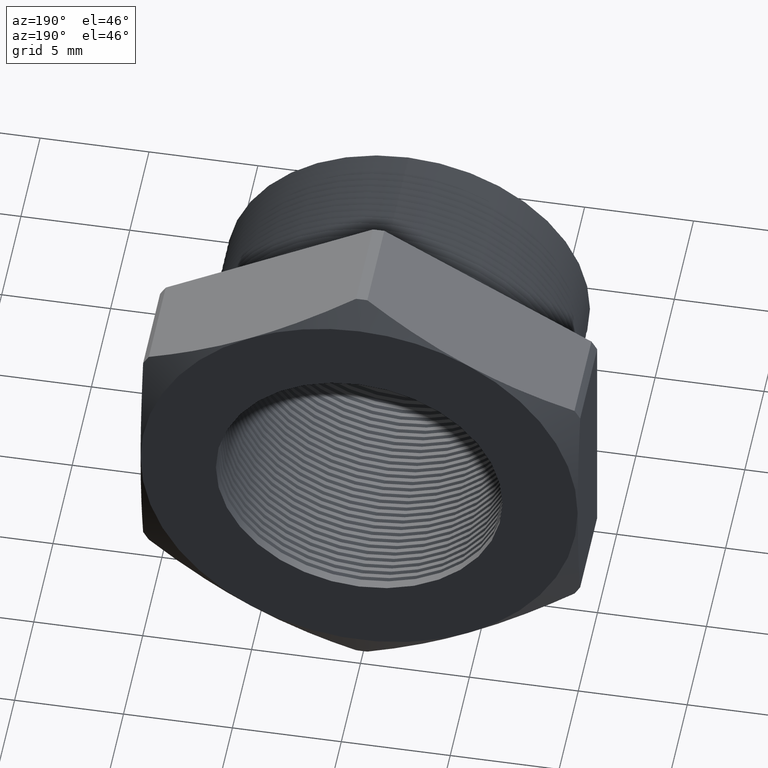
[diagram: clean part render]
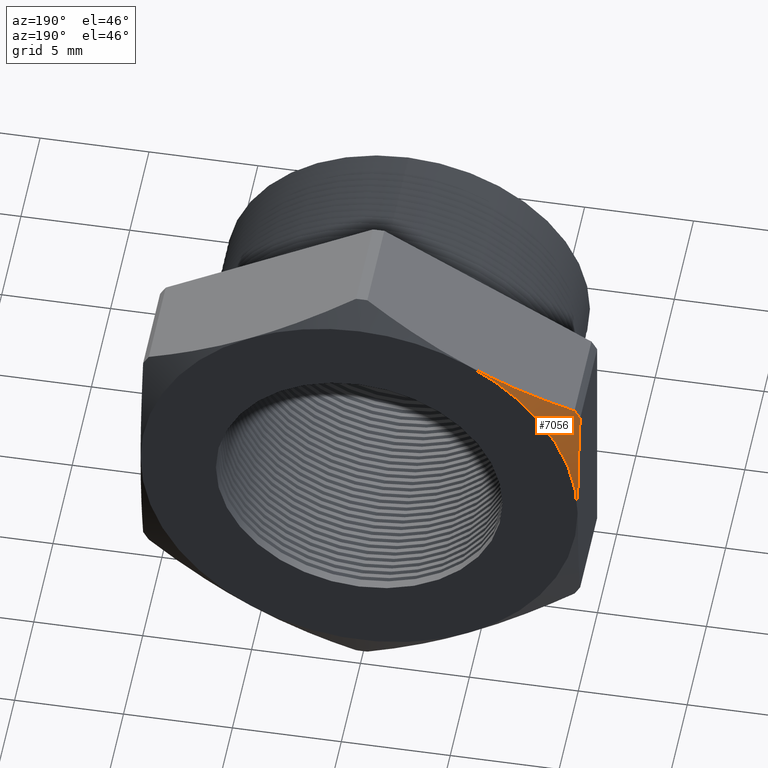
[diagram: same view with one face highlighted and labeled with its STEP entity id]
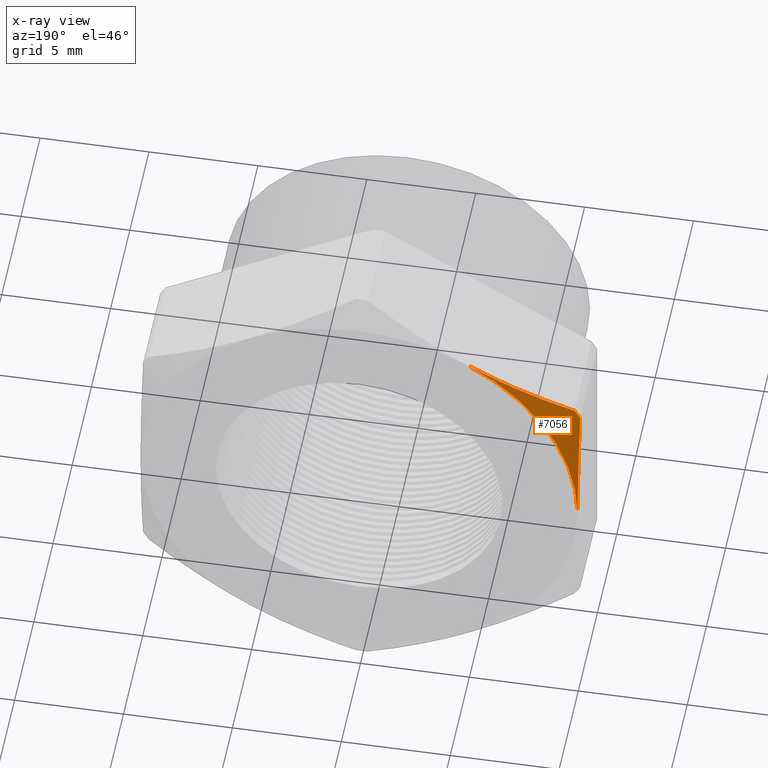
[diagram: x-ray of the same camera — body ghosted, the highlighted face saturated]
A machine part, auxiliary view. The second image highlights one B-rep face of the part: STEP entity #7056.
The next image is the same camera in x-ray: the body ghosted, the highlighted face saturated — about 0% of this face is hidden behind the body in this view.
In plain terms, the highlighted conical surface has half-angle 65 deg.
Its self-contained STEP definition (entity closure, byte-faithful):
#31 = VERTEX_POINT ( 'NONE', #4869 ) ;
#34 = VERTEX_POINT ( 'NONE', #4859 ) ;
#46 = EDGE_CURVE ( 'NONE', #34, #31, #4904, .T. ) ;
#102 = EDGE_CURVE ( 'NONE', #503, #34, #5007, .T. ) ;
#104 = EDGE_CURVE ( 'NONE', #31, #532, #5000, .T. ) ;
#503 = VERTEX_POINT ( 'NONE', #5787 ) ;
#527 = EDGE_CURVE ( 'NONE', #532, #503, #5795, .T. ) ;
#532 = VERTEX_POINT ( 'NONE', #5844 ) ;
#3420 = DIRECTION ( 'NONE',  ( 0.0000000000000000000, 0.0000000000000000000, 1.000000000000000000 ) ) ;
#3421 = DIRECTION ( 'NONE',  ( 0.0000000000000000000, -1.000000000000000000, 0.0000000000000000000 ) ) ;
#3422 = CARTESIAN_POINT ( 'NONE',  ( 0.0000000000000000000, 0.4075548905829479200, 0.0000000000000000000 ) ) ;
#3423 = AXIS2_PLACEMENT_3D ( 'NONE', #3422, #3421, #3420 ) ;
#3424 = CONICAL_SURFACE ( 'NONE', #3423, 0.3949999999999999600, 1.134464013796316700 ) ;
#3429 = FACE_OUTER_BOUND ( 'NONE', #7062, .T. ) ;
#4859 = CARTESIAN_POINT ( 'NONE',  ( -0.3847399997329629100, 0.3817680770869766300, 0.2339769702459618100 ) ) ;
#4869 = CARTESIAN_POINT ( 'NONE',  ( -0.3949999999999999600, 0.3817680770869766300, 0.2162061284977833100 ) ) ;
#4900 = DIRECTION ( 'NONE',  ( 0.0000000000000000000, 0.0000000000000000000, -1.000000000000000000 ) ) ;
#4901 = DIRECTION ( 'NONE',  ( 0.0000000000000000000, -1.000000000000000000, 0.0000000000000000000 ) ) ;
#4902 = CARTESIAN_POINT ( 'NONE',  ( 0.0000000000000000000, 0.3817680770869766300, 0.0000000000000000000 ) ) ;
#4903 = AXIS2_PLACEMENT_3D ( 'NONE', #4902, #4901, #4900 ) ;
#4904 = CIRCLE ( 'NONE', #4903, 0.4502999999999999800 ) ;
#5000 = B_SPLINE_CURVE_WITH_KNOTS ( 'NONE', 3,
 ( #5056, #5055, #5054, #5053, #5052, #5051, #5050, #5049 ),
 .UNSPECIFIED., .F., .F.,
 ( 4, 2, 2, 4 ),
 ( 0.02262746061158046200, 0.02399821448427007200, 0.02536896835695967900, 0.02811047610233889300 ),
 .UNSPECIFIED. ) ;
#5001 = CARTESIAN_POINT ( 'NONE',  ( -0.3847399997329629100, 0.3817680770869766300, 0.2339769702459618100 ) ) ;
#5002 = CARTESIAN_POINT ( 'NONE',  ( -0.3538644116588919300, 0.3897502881590466100, 0.2518029993319146900 ) ) ;
#5003 = CARTESIAN_POINT ( 'NONE',  ( -0.3227431943461728800, 0.3962764420413619200, 0.2697708425249217800 ) ) ;
#5004 = CARTESIAN_POINT ( 'NONE',  ( -0.2599588776186195200, 0.4052207272773963300, 0.3060193846884615700 ) ) ;
#5005 = CARTESIAN_POINT ( 'NONE',  ( -0.2286719793528691200, 0.4075548905829479200, 0.3240828838243011200 ) ) ;
#5006 = CARTESIAN_POINT ( 'NONE',  ( -0.1974999999999999800, 0.4075548905829479200, 0.3420800344948533600 ) ) ;
#5007 = B_SPLINE_CURVE_WITH_KNOTS ( 'NONE', 3,
 ( #5006, #5005, #5004, #5003, #5002, #5001 ),
 .UNSPECIFIED., .F., .F.,
 ( 4, 2, 4 ),
 ( 0.005520192186429567300, 0.008258536476824111800, 0.01099688076721865500 ),
 .UNSPECIFIED. ) ;
#5049 = CARTESIAN_POINT ( 'NONE',  ( -0.3949999999999999600, 0.4075548905829479200, 0.0000000000000000000 ) ) ;
#5050 = CARTESIAN_POINT ( 'NONE',  ( -0.3949999999999999600, 0.4075548905829479700, 0.03612954301674540400 ) ) ;
#5051 = CARTESIAN_POINT ( 'NONE',  ( -0.3950000000000000700, 0.4052039801787657400, 0.07229683291633771900 ) ) ;
#5052 = CARTESIAN_POINT ( 'NONE',  ( -0.3950000000000000200, 0.3984971256823441900, 0.1265988345955461600 ) ) ;
#5053 = CARTESIAN_POINT ( 'NONE',  ( -0.3949999999999999100, 0.3957288236683488800, 0.1447566914895557200 ) ) ;
#5054 = CARTESIAN_POINT ( 'NONE',  ( -0.3949999999999999100, 0.3893452266422921500, 0.1806961926986594400 ) ) ;
#5055 = CARTESIAN_POINT ( 'NONE',  ( -0.3949999999999999600, 0.3857293561114502100, 0.1985133177038116400 ) ) ;
#5056 = CARTESIAN_POINT ( 'NONE',  ( -0.3949999999999999600, 0.3817680770869766300, 0.2162061284977833100 ) ) ;
#5787 = CARTESIAN_POINT ( 'NONE',  ( -0.1974999999999999800, 0.4075548905829479200, 0.3420800344948533600 ) ) ;
#5795 = CIRCLE ( 'NONE', #5857, 0.3949999999999999600 ) ;
#5844 = CARTESIAN_POINT ( 'NONE',  ( -0.3949999999999999600, 0.4075548905829479200, 0.0000000000000000000 ) ) ;
#5854 = DIRECTION ( 'NONE',  ( 0.0000000000000000000, 0.0000000000000000000, 1.000000000000000000 ) ) ;
#5855 = DIRECTION ( 'NONE',  ( 0.0000000000000000000, 1.000000000000000000, 0.0000000000000000000 ) ) ;
#5856 = CARTESIAN_POINT ( 'NONE',  ( 0.0000000000000000000, 0.4075548905829479200, 0.0000000000000000000 ) ) ;
#5857 = AXIS2_PLACEMENT_3D ( 'NONE', #5856, #5855, #5854 ) ;
#7049 = ORIENTED_EDGE ( 'NONE', *, *, #102, .F. ) ;
#7051 = ORIENTED_EDGE ( 'NONE', *, *, #104, .F. ) ;
#7055 = ORIENTED_EDGE ( 'NONE', *, *, #46, .F. ) ;
#7056 = ADVANCED_FACE ( 'NONE', ( #3429 ), #3424, .T. ) ;
#7058 = ORIENTED_EDGE ( 'NONE', *, *, #527, .F. ) ;
#7062 = EDGE_LOOP ( 'NONE', ( #7058, #7051, #7055, #7049 ) ) ;